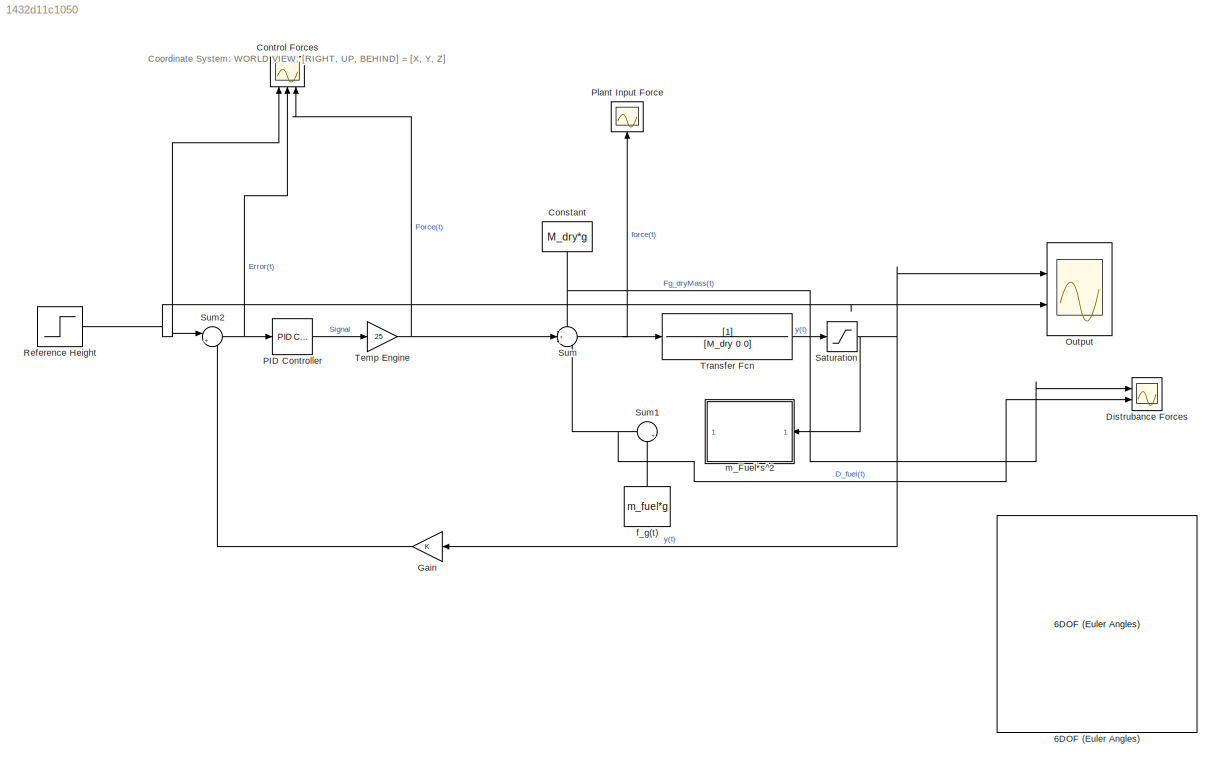
MODEL slx_1432d11c1050
KIND model
CONFIG AbsTol = auto
CONFIG EnableMultiTasking = off
CONFIG FixedStep = auto
CONFIG MaxStep = auto
CONFIG MinStep = auto
CONFIG RelTol = 1e-3
CONFIG SampleTimeConstraint = Unconstrained
CONFIG SolverName = VariableStepAuto
CONFIG StartTime = 0.0
CONFIG StopTime = 10
WORKSPACE source: mxarray member
WORKSPACE M_dry = 1
WORKSPACE g = 9.81
WORKSPACE m_fuel = 0.25
BLOCK [Reference] 6DOF (Euler Angles)  REF=shared6dof/6DOF (Euler Angles)
  Ports = [2, 8]
  SourceBlock = shared6dof/6DOF (Euler Angles)
  SourceProductBaseCode = AE,PW,DR,MT,UV,VE
  SourceType = 6DOF EoM (Body Axis)
BLOCK [Constant] Constant
  NameLocation = left
  Value = M_dry*g
BLOCK [Scope] Control Forces
  Floating = off
  NameLocation = right
  NumInputPorts = 3
  Ports = [3]
  ScopeSpecificationString = Simulink.scopes.TimeScopeBlockCfg('CurrentConfiguration', extmgr.ConfigurationSet(extmgr.Configuration('Core','General UI',true),extmgr.Configuration('Core','Source UI',true),extmgr.Configuration('Sources','WiredSimulink',true,'DataLoggingVariableName','ScopeData1'),extmgr.Configuration('Visuals','Time Domain',true,'TimeAxisLabels','All','SerializedDisplays',{struct('MinYLimReal','-0.125','MaxYLim...<+3030ch>
BLOCK [Scope] Distrubance Forces
  Floating = off
  NumInputPorts = 2
  Ports = [2]
  ScopeSpecificationString = Simulink.scopes.TimeScopeBlockCfg('CurrentConfiguration', extmgr.ConfigurationSet(extmgr.Configuration('Core','General UI',true),extmgr.Configuration('Core','Source UI',true),extmgr.Configuration('Sources','WiredSimulink',true,'DataLoggingVariableName','ScopeData2'),extmgr.Configuration('Visuals','Time Domain',true,'SerializedDisplays',{struct('MinYLimReal','8.81','MaxYLimReal','10.81','YLabelReal...<+2192ch>
BLOCK [Gain] Gain
  NameLocation = top
BLOCK [Scope] Output
  Floating = off
  NumInputPorts = 2
  Ports = [2]
  ScopeSpecificationString = Simulink.scopes.TimeScopeBlockCfg('CurrentConfiguration', extmgr.ConfigurationSet(extmgr.Configuration('Core','General UI',true),extmgr.Configuration('Core','Source UI',true),extmgr.Configuration('Sources','WiredSimulink',true),extmgr.Configuration('Visuals','Time Domain',true,'SerializedDisplays',{struct('MinYLimReal','-0.27188','MaxYLimReal','2.44689','YLabelReal','','MinYLimMag','0.00000','MaxY...<+1467ch>
BLOCK [Reference] PID Controller  REF=slpidlib/PID Controller
  Ports = [1, 1]
  SourceBlock = slpidlib/PID Controller
  SourceProductBaseCode = SL
  SourceType = PID 1dof
BLOCK [Scope] Plant Input Force
  Floating = off
  NameLocation = right
  NumInputPorts = 1
  Ports = [1]
  ScopeSpecificationString = Simulink.scopes.TimeScopeBlockCfg('CurrentConfiguration', extmgr.ConfigurationSet(extmgr.Configuration('Core','General UI',true),extmgr.Configuration('Core','Source UI',true),extmgr.Configuration('Sources','WiredSimulink',true,'DataLoggingVariableName','ScopeData3'),extmgr.Configuration('Visuals','Time Domain',true,'SerializedDisplays',{struct('MinYLimReal','2.9102','MaxYLimReal','2.91301','YLabel...<+1462ch>
BLOCK [Step] Reference Height
  SampleTime = 0
BLOCK [Saturate] Saturation
  LowerLimit = 0
  UpperLimit = inf
BLOCK [Sum] Sum
  Inputs = -+-
  Ports = [3, 1]
BLOCK [Sum] Sum1
  Inputs = |++
  Ports = [2, 1]
BLOCK [Sum] Sum2
  Inputs = |+-
  Ports = [2, 1]
BLOCK [Gain] Temp  Engine
  Gain = 25
BLOCK [TransferFcn] Transfer Fcn
  ContinuousStateAttributes = ""
  Denominator = [M_dry 0 0]
BLOCK [Constant] f_g(t)
  NameLocation = right
  Value = m_fuel*g
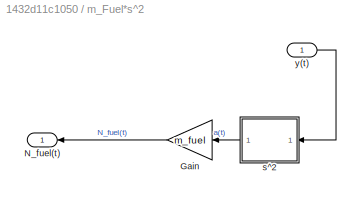
BLOCK [SubSystem] m_Fuel*s^2
  Commented = through
  Ports = [1, 1]
  RequestExecContextInheritance = off
BLOCK [Gain] m_Fuel*s^2/Gain
  Gain = m_fuel
BLOCK [Outport] m_Fuel*s^2/N_fuel(t)
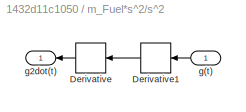
BLOCK [SubSystem] m_Fuel*s^2/s^2
  Ports = [1, 1]
  RequestExecContextInheritance = off
BLOCK [Derivative] m_Fuel*s^2/s^2/Derivative
BLOCK [Derivative] m_Fuel*s^2/s^2/Derivative1
BLOCK [Inport] m_Fuel*s^2/s^2/g(t)
BLOCK [Outport] m_Fuel*s^2/s^2/g2dot(t)
BLOCK [Inport] m_Fuel*s^2/y(t)
ANNOTATION (root): Coordinate System: WORLD VIEW; [RIGHT, UP, BEHIND] = [X, Y, Z]
NET Constant:1 -> Distrubance Forces:1, Sum:1
LINE Gain:1 -> Sum2:2
LINE PID Controller:1 -> Temp  Engine:1
NET Reference Height:1 -> Control Forces:1, Output:2, Sum2:1
NET Saturation:1 -> Gain:1, Output:1, m_Fuel*s^2:1
NET Sum1:1 -> Distrubance Forces:2, Sum:3
NET Sum2:1 -> Control Forces:2, PID Controller:1
NET Sum:1 -> Plant Input Force:1, Transfer Fcn:1
NET Temp  Engine:1 -> Control Forces:3, Sum:2
LINE Transfer Fcn:1 -> Saturation:1
LINE f_g(t):1 -> Sum1:2
LINE m_Fuel*s^2/Gain:1 -> m_Fuel*s^2/N_fuel(t):1
LINE m_Fuel*s^2/s^2/Derivative1:1 -> m_Fuel*s^2/s^2/Derivative:1
LINE m_Fuel*s^2/s^2/Derivative:1 -> m_Fuel*s^2/s^2/g2dot(t):1
LINE m_Fuel*s^2/s^2/g(t):1 -> m_Fuel*s^2/s^2/Derivative1:1
LINE m_Fuel*s^2/s^2:1 -> m_Fuel*s^2/Gain:1
LINE m_Fuel*s^2/y(t):1 -> m_Fuel*s^2/s^2:1
note: NET lines group one-source signal fan-out (src -> all destinations, sorted); 1:1 wires keep LINE
